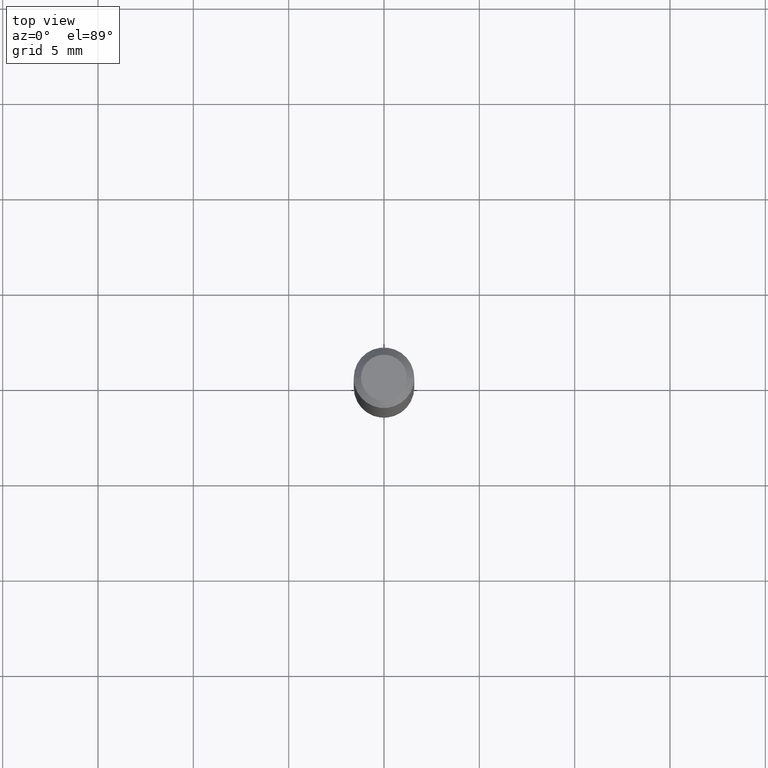
[diagram: clean part render]
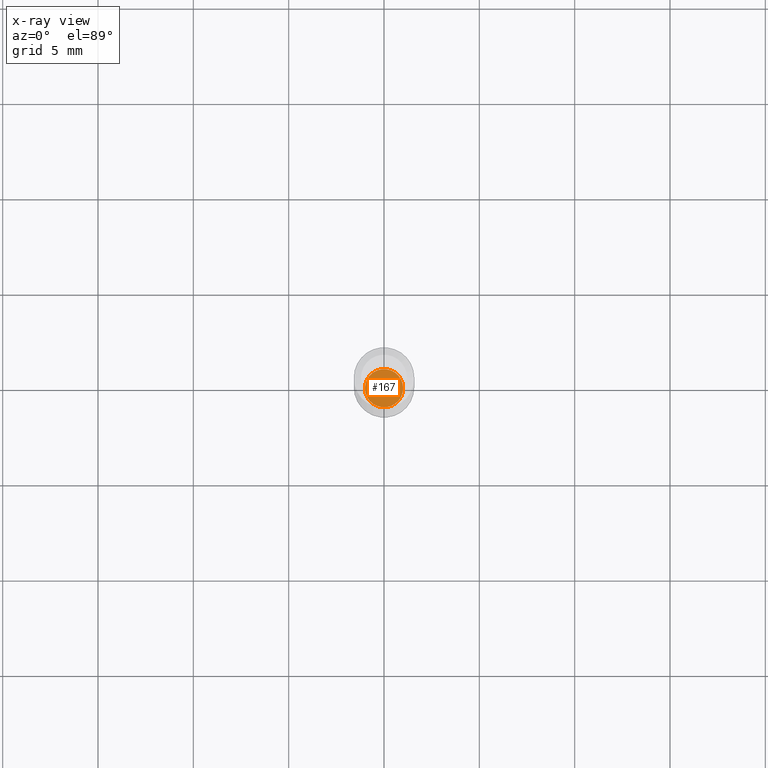
[diagram: x-ray — body ghosted, one internal face saturated and labeled with its STEP entity id]
A machine part, top view, then the same camera in x-ray: the body is ghosted and one INTERNAL B-rep face — a face not visible from any outside direction — is saturated and labeled: STEP entity #167.
In plain terms, the highlighted planar face has unit normal (-0, 0, 1).
Its self-contained STEP definition (entity closure, byte-faithful):
#65 = CARTESIAN_POINT ( 'NONE',  ( 0.03950000000000001427, -4.675093512710971939E-15, -1.260000000000000231 ) ) ;
#97 = CARTESIAN_POINT ( 'NONE',  ( 3.081290695793272291E-29, -4.399266486942364120E-15, -1.260000000000000231 ) ) ;
#106 = AXIS2_PLACEMENT_3D ( 'NONE', #97, #184, #507 ) ;
#109 = CARTESIAN_POINT ( 'NONE',  ( 3.081290695793272291E-29, -4.399266486942364120E-15, -1.260000000000000231 ) ) ;
#135 = CIRCLE ( 'NONE', #106, 0.03950000000000001427 ) ;
#143 = DIRECTION ( 'NONE',  ( 1.000000000000000000, -6.982962677686265922E-15, 4.876176775795935793E-29 ) ) ;
#167 = ADVANCED_FACE ( 'NONE', ( #382 ), #428, .F. ) ;
#180 = CARTESIAN_POINT ( 'NONE',  ( 3.081290695793272291E-29, -4.399266486942364120E-15, -1.260000000000000231 ) ) ;
#184 = DIRECTION ( 'NONE',  ( -2.445468806185136597E-29, 3.491481338843145583E-15, 1.000000000000000000 ) ) ;
#197 = CARTESIAN_POINT ( 'NONE',  ( -0.03950000000000001427, -4.115952879143013491E-15, -1.260000000000000231 ) ) ;
#262 = DIRECTION ( 'NONE',  ( 1.000000000000000000, -6.982962677686269077E-15, 0.000000000000000000 ) ) ;
#277 = ORIENTED_EDGE ( 'NONE', *, *, #438, .F. ) ;
#282 = ORIENTED_EDGE ( 'NONE', *, *, #454, .F. ) ;
#334 = VERTEX_POINT ( 'NONE', #197 ) ;
#336 = DIRECTION ( 'NONE',  ( -2.445468806185136597E-29, 3.491481338843145583E-15, 1.000000000000000000 ) ) ;
#368 = DIRECTION ( 'NONE',  ( -2.438088387897960049E-29, 3.491481338843145188E-15, 1.000000000000000000 ) ) ;
#382 = FACE_OUTER_BOUND ( 'NONE', #514, .T. ) ;
#402 = AXIS2_PLACEMENT_3D ( 'NONE', #109, #368, #143 ) ;
#428 = PLANE ( 'NONE',  #402 ) ;
#431 = AXIS2_PLACEMENT_3D ( 'NONE', #180, #336, #262 ) ;
#437 = CIRCLE ( 'NONE', #431, 0.03950000000000001427 ) ;
#438 = EDGE_CURVE ( 'NONE', #334, #473, #135, .T. ) ;
#454 = EDGE_CURVE ( 'NONE', #473, #334, #437, .T. ) ;
#473 = VERTEX_POINT ( 'NONE', #65 ) ;
#507 = DIRECTION ( 'NONE',  ( 1.000000000000000000, -6.982962677686269077E-15, 0.000000000000000000 ) ) ;
#514 = EDGE_LOOP ( 'NONE', ( #282, #277 ) ) ;